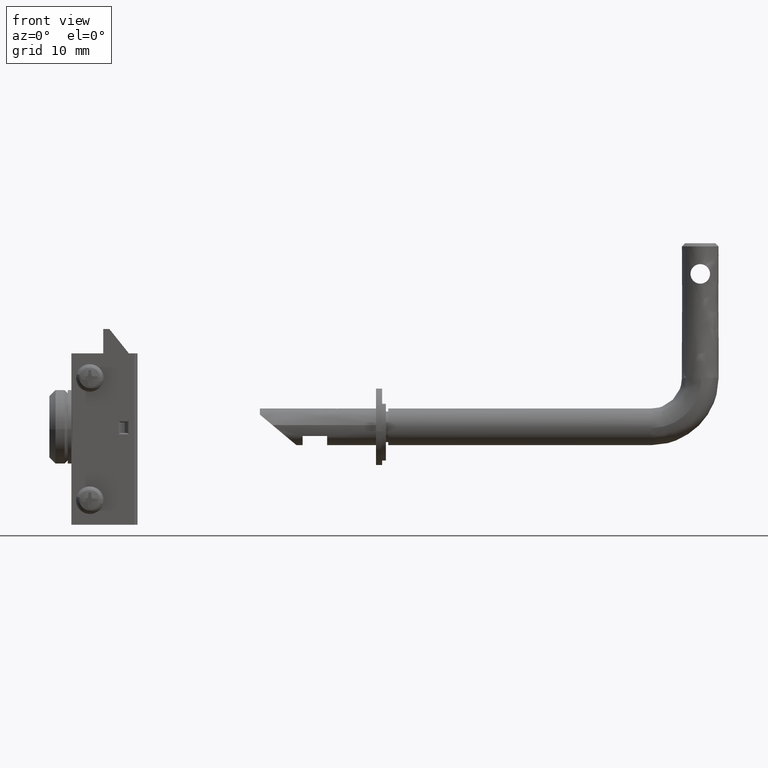
[diagram: clean part render]
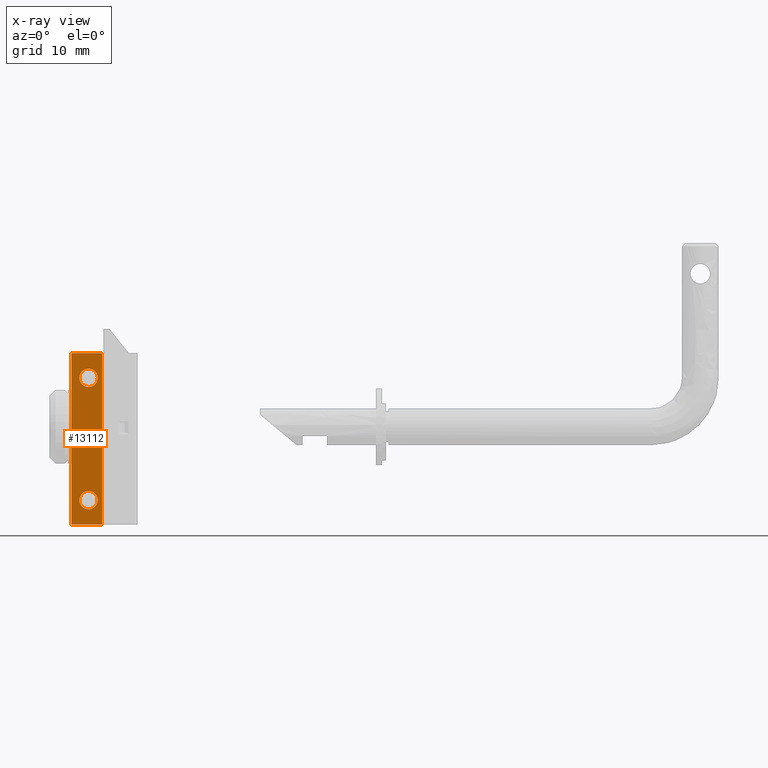
[diagram: x-ray — body ghosted, one internal face saturated and labeled with its STEP entity id]
A machine part, front view, then the same camera in x-ray: the body is ghosted and one INTERNAL B-rep face — a face not visible from any outside direction — is saturated and labeled: STEP entity #13112.
In plain terms, the highlighted face is a freeform B-spline surface patch.
Its self-contained STEP definition (entity closure, byte-faithful):
#12566=CARTESIAN_POINT('',(-7.193663851952783,5.0,22.628004285669132));
#12567=VERTEX_POINT('',#12566);
#12573=CARTESIAN_POINT('',(-7.799986999999869,5.0,22.500000000000000));
#12574=VERTEX_POINT('',#12573);
#12575=CARTESIAN_POINT('',(-7.193663851952785,5.0,22.628004285669132));
#12576=CARTESIAN_POINT('',(-7.483313574047501,5.0,22.500000000000004));
#12577=CARTESIAN_POINT('',(-7.799986999999869,5.0,22.500000000000000));
#12585=(BOUNDED_CURVE()B_SPLINE_CURVE(2,(#12575,#12576,#12577),.UNSPECIFIED.,.F.,.U.)B_SPLINE_CURVE_WITH_KNOTS((3,3),(0.931361578445075,1.0),.UNSPECIFIED.)CURVE()GEOMETRIC_REPRESENTATION_ITEM()RATIONAL_B_SPLINE_CURVE((0.883326595736187,0.919585087106014,1.0))REPRESENTATION_ITEM(''));
#12586=EDGE_CURVE('',#12567,#12574,#12585,.T.);
#12588=CARTESIAN_POINT('',(-7.799986999999869,5.0,25.500000000000000));
#12589=VERTEX_POINT('',#12588);
#12590=CARTESIAN_POINT('',(-7.799986999999869,5.0,22.500000000000000));
#12591=CARTESIAN_POINT('',(-9.299986999999868,5.000000000000001,22.500000000000000));
#12592=CARTESIAN_POINT('',(-9.299986999999868,5.0,24.0));
#12593=CARTESIAN_POINT('',(-9.299986999999868,5.000000000000001,25.500000000000007));
#12594=CARTESIAN_POINT('',(-7.799986999999869,5.0,25.500000000000000));
#12602=(BOUNDED_CURVE()B_SPLINE_CURVE(2,(#12590,#12591,#12592,#12593,#12594),.UNSPECIFIED.,.F.,.U.)B_SPLINE_CURVE_WITH_KNOTS((3,2,3),(0.0,0.250000000000000,0.500000000000000),.UNSPECIFIED.)CURVE()GEOMETRIC_REPRESENTATION_ITEM()RATIONAL_B_SPLINE_CURVE((1.0,0.707106781186548,1.0,0.707106781186548,1.0))REPRESENTATION_ITEM(''));
#12603=EDGE_CURVE('',#12574,#12589,#12602,.T.);
#12605=CARTESIAN_POINT('',(-6.300044115408033,5.0,23.986910196245841));
#12606=VERTEX_POINT('',#12605);
#12607=CARTESIAN_POINT('',(-7.799986999999869,5.0,25.500000000000000));
#12608=CARTESIAN_POINT('',(-6.299986999999871,5.000000000000001,25.500000000000007));
#12609=CARTESIAN_POINT('',(-6.299986999999870,5.0,24.0));
#12610=CARTESIAN_POINT('',(-6.299986999999869,5.0,23.993454973262324));
#12611=CARTESIAN_POINT('',(-6.300044115408033,5.0,23.986910196245844));
#12619=(BOUNDED_CURVE()B_SPLINE_CURVE(2,(#12607,#12608,#12609,#12610,#12611),.UNSPECIFIED.,.F.,.U.)B_SPLINE_CURVE_WITH_KNOTS((3,2,3),(0.500000000000000,0.750000000000000,0.751539894453969),.UNSPECIFIED.)CURVE()GEOMETRIC_REPRESENTATION_ITEM()RATIONAL_B_SPLINE_CURVE((1.0,0.707106781186548,1.0,0.998195901426976,0.996414027825048))REPRESENTATION_ITEM(''));
#12620=EDGE_CURVE('',#12589,#12606,#12619,.T.);
#12710=CARTESIAN_POINT('',(-6.300044115408033,5.0,23.986910196245841));
#12711=CARTESIAN_POINT('',(-6.308489303292366,5.000000000000001,23.019187591402538));
#12712=CARTESIAN_POINT('',(-7.193663851952783,5.0,22.628004285669121));
#12720=(BOUNDED_CURVE()B_SPLINE_CURVE(2,(#12710,#12711,#12712),.UNSPECIFIED.,.F.,.U.)B_SPLINE_CURVE_WITH_KNOTS((3,3),(0.751539894453969,0.931361578445075),.UNSPECIFIED.)CURVE()GEOMETRIC_REPRESENTATION_ITEM()RATIONAL_B_SPLINE_CURVE((0.996414027825048,0.788335148826503,0.883326595736188))REPRESENTATION_ITEM(''));
#12721=EDGE_CURVE('',#12606,#12567,#12720,.T.);
#12762=CARTESIAN_POINT('',(-9.288386320680512,5.0,4.186192003580838));
#12763=VERTEX_POINT('',#12762);
#12769=CARTESIAN_POINT('',(-7.799986999999869,5.0,5.500000000000116));
#12770=VERTEX_POINT('',#12769);
#12771=CARTESIAN_POINT('',(-9.288386320680512,5.0,4.186192003580838));
#12772=CARTESIAN_POINT('',(-9.124034899398668,5.000000000000001,5.500000000000116));
#12773=CARTESIAN_POINT('',(-7.799986999999869,5.0,5.500000000000116));
#12781=(BOUNDED_CURVE()B_SPLINE_CURVE(2,(#12771,#12772,#12773),.UNSPECIFIED.,.F.,.U.)B_SPLINE_CURVE_WITH_KNOTS((3,3),(0.271473929075165,0.500000000000000),.UNSPECIFIED.)CURVE()GEOMETRIC_REPRESENTATION_ITEM()RATIONAL_B_SPLINE_CURVE((0.954005430071994,0.732265054016135,1.0))REPRESENTATION_ITEM(''));
#12782=EDGE_CURVE('',#12763,#12770,#12781,.T.);
#12784=CARTESIAN_POINT('',(-6.300044115408035,5.0,3.986910196245960));
#12785=VERTEX_POINT('',#12784);
#12786=CARTESIAN_POINT('',(-7.799986999999869,5.0,5.500000000000116));
#12787=CARTESIAN_POINT('',(-6.299986999999871,5.000000000000001,5.500000000000115));
#12788=CARTESIAN_POINT('',(-6.299986999999870,5.0,4.000000000000116));
#12789=CARTESIAN_POINT('',(-6.299986999999869,5.0,3.993454973262438));
#12790=CARTESIAN_POINT('',(-6.300044115408035,5.0,3.986910196245960));
#12798=(BOUNDED_CURVE()B_SPLINE_CURVE(2,(#12786,#12787,#12788,#12789,#12790),.UNSPECIFIED.,.F.,.U.)B_SPLINE_CURVE_WITH_KNOTS((3,2,3),(0.500000000000000,0.750000000000000,0.751539894453969),.UNSPECIFIED.)CURVE()GEOMETRIC_REPRESENTATION_ITEM()RATIONAL_B_SPLINE_CURVE((1.0,0.707106781186548,1.0,0.998195901426976,0.996414027825048))REPRESENTATION_ITEM(''));
#12799=EDGE_CURVE('',#12770,#12785,#12798,.T.);
#12883=CARTESIAN_POINT('',(-7.799986999999869,5.0,2.500000000000116));
#12884=VERTEX_POINT('',#12883);
#12885=CARTESIAN_POINT('',(-6.300044115408035,5.000000000000001,3.986910196245959));
#12886=CARTESIAN_POINT('',(-6.313020185111865,5.0,2.500000000000116));
#12887=CARTESIAN_POINT('',(-7.799986999999869,5.0,2.500000000000116));
#12895=(BOUNDED_CURVE()B_SPLINE_CURVE(2,(#12885,#12886,#12887),.UNSPECIFIED.,.F.,.U.)B_SPLINE_CURVE_WITH_KNOTS((3,3),(0.751539894453969,1.0),.UNSPECIFIED.)CURVE()GEOMETRIC_REPRESENTATION_ITEM()RATIONAL_B_SPLINE_CURVE((0.996414027825048,0.708910879759572,1.0))REPRESENTATION_ITEM(''));
#12896=EDGE_CURVE('',#12785,#12884,#12895,.T.);
#12898=CARTESIAN_POINT('',(-7.799986999999869,5.0,2.500000000000116));
#12899=CARTESIAN_POINT('',(-9.299986999999868,5.000000000000001,2.500000000000116));
#12900=CARTESIAN_POINT('',(-9.299986999999868,5.0,4.000000000000116));
#12901=CARTESIAN_POINT('',(-9.299986999999868,5.0,4.093457391766733));
#12902=CARTESIAN_POINT('',(-9.288386320680512,5.000000000000001,4.186192003580838));
#12910=(BOUNDED_CURVE()B_SPLINE_CURVE(2,(#12898,#12899,#12900,#12901,#12902),.UNSPECIFIED.,.F.,.U.)B_SPLINE_CURVE_WITH_KNOTS((3,2,3),(0.0,0.250000000000000,0.271473929075165),.UNSPECIFIED.)CURVE()GEOMETRIC_REPRESENTATION_ITEM()RATIONAL_B_SPLINE_CURVE((1.0,0.707106781186548,1.0,0.974841727170412,0.954005430071994))REPRESENTATION_ITEM(''));
#12911=EDGE_CURVE('',#12884,#12763,#12910,.T.);
#12924=CARTESIAN_POINT('',(-10.600006000000119,5.0,28.0));
#12925=VERTEX_POINT('',#12924);
#12938=CARTESIAN_POINT('',(-5.600006000000001,5.0,28.0));
#12939=VERTEX_POINT('',#12938);
#12945=CARTESIAN_POINT('',(-10.600006000000119,5.0,28.0));
#12946=CARTESIAN_POINT('',(-5.600006000000001,5.0,28.0));
#12947=QUASI_UNIFORM_CURVE('',1,(#12945,#12946),.UNSPECIFIED.,.F.,.U.);
#12948=EDGE_CURVE('',#12925,#12939,#12947,.T.);
#12960=CARTESIAN_POINT('',(-10.600006000000119,5.0,0.0));
#12961=VERTEX_POINT('',#12960);
#12967=CARTESIAN_POINT('',(-5.600006000000001,5.0,0.0));
#12968=VERTEX_POINT('',#12967);
#12969=CARTESIAN_POINT('',(-10.600006000000119,5.0,0.0));
#12970=CARTESIAN_POINT('',(-5.600006000000001,5.0,0.0));
#12971=QUASI_UNIFORM_CURVE('',1,(#12969,#12970),.UNSPECIFIED.,.F.,.U.);
#12972=EDGE_CURVE('',#12961,#12968,#12971,.T.);
#13001=CARTESIAN_POINT('',(-5.600006000000001,5.0,0.0));
#13002=CARTESIAN_POINT('',(-5.600006000000001,5.0,28.0));
#13003=QUASI_UNIFORM_CURVE('',1,(#13001,#13002),.UNSPECIFIED.,.F.,.U.);
#13004=EDGE_CURVE('',#12968,#12939,#13003,.T.);
#13033=CARTESIAN_POINT('',(-10.600006000000119,5.0,0.0));
#13034=CARTESIAN_POINT('',(-10.600006000000119,5.0,28.0));
#13035=QUASI_UNIFORM_CURVE('',1,(#13033,#13034),.UNSPECIFIED.,.F.,.U.);
#13036=EDGE_CURVE('',#12961,#12925,#13035,.T.);
#13089=CARTESIAN_POINT('',(-10.849756113254911,5.0,29.398599945730570));
#13090=CARTESIAN_POINT('',(-10.849756113254911,5.0,-1.398600696749092));
#13091=CARTESIAN_POINT('',(-5.350256244373078,5.0,29.398599945730570));
#13092=CARTESIAN_POINT('',(-5.350256244373078,5.0,-1.398600696749092));
#13093=B_SPLINE_SURFACE_WITH_KNOTS('',1,1,((#13089,#13091),(#13090,#13092)),.UNSPECIFIED.,.F.,.F.,.U.,(2,2),(2,2),(0.0,30.797200642479670),(0.0,5.499499868881834),.UNSPECIFIED.);
#13094=ORIENTED_EDGE('',*,*,#12948,.T.);
#13095=ORIENTED_EDGE('',*,*,#13004,.F.);
#13096=ORIENTED_EDGE('',*,*,#12972,.F.);
#13097=ORIENTED_EDGE('',*,*,#13036,.T.);
#13098=EDGE_LOOP('',(#13094,#13095,#13096,#13097));
#13099=FACE_OUTER_BOUND('',#13098,.T.);
#13100=ORIENTED_EDGE('',*,*,#12603,.F.);
#13101=ORIENTED_EDGE('',*,*,#12586,.F.);
#13102=ORIENTED_EDGE('',*,*,#12721,.F.);
#13103=ORIENTED_EDGE('',*,*,#12620,.F.);
#13104=EDGE_LOOP('',(#13100,#13101,#13102,#13103));
#13105=FACE_BOUND('',#13104,.T.);
#13106=ORIENTED_EDGE('',*,*,#12799,.F.);
#13107=ORIENTED_EDGE('',*,*,#12782,.F.);
#13108=ORIENTED_EDGE('',*,*,#12911,.F.);
#13109=ORIENTED_EDGE('',*,*,#12896,.F.);
#13110=EDGE_LOOP('',(#13106,#13107,#13108,#13109));
#13111=FACE_BOUND('',#13110,.T.);
#13112=ADVANCED_FACE('',(#13099,#13105,#13111),#13093,.F.);